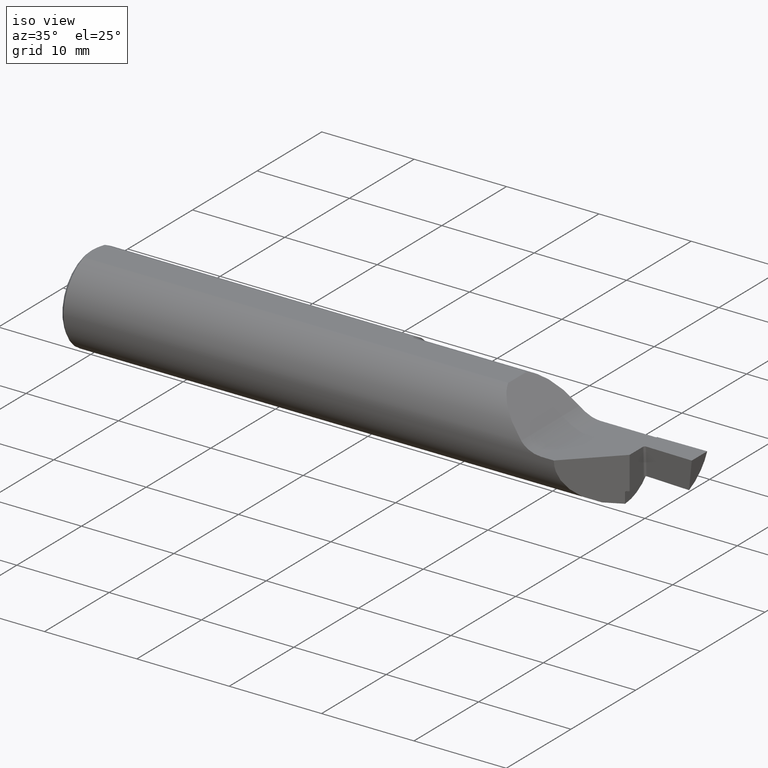
[diagram: clean part render]
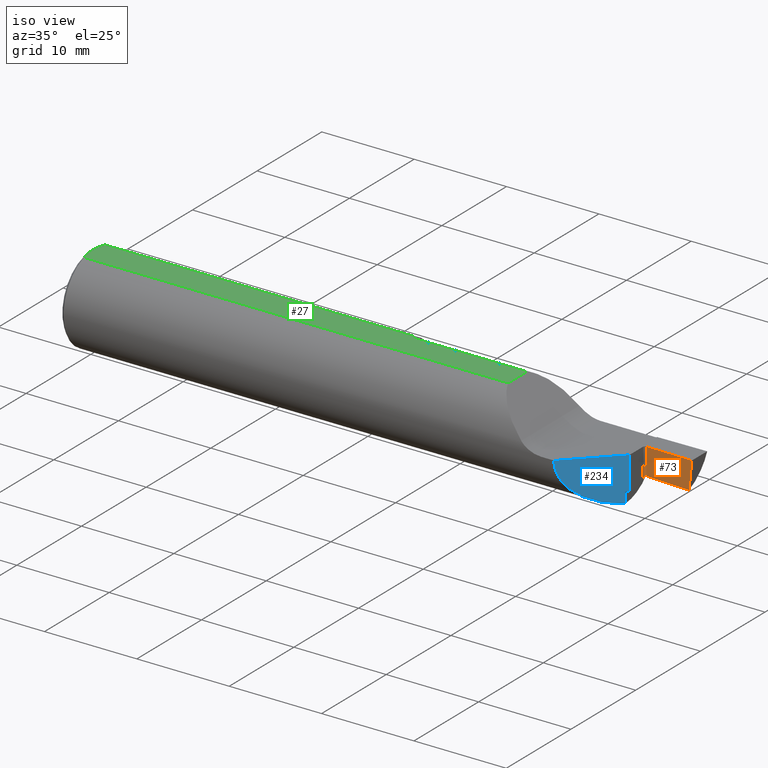
[diagram: same view with three faces highlighted in distinct colors, each labeled with its STEP entity id]
A machine part, iso view with three faces highlighted in distinct colors.
Their STEP definitions:

[orange] entity #73 — the highlighted planar face has unit normal (0.0174, 0.9992, 0.0349).
#18 = ORIENTED_EDGE ( 'NONE', *, *, #813, .T. ) ;
#41 = CARTESIAN_POINT ( 'NONE',  ( 2.303210421468169233, 0.09583674312377118976, -0.1160315976012115252 ) ) ;
#52 = EDGE_CURVE ( 'NONE', #150, #299, #556, .T. ) ;
#73 = ADVANCED_FACE ( 'NONE', ( #350 ), #749, .F. ) ;
#76 = DIRECTION ( 'NONE',  ( 0.9998476951563912696, -0.01745240643727495600, 0.000000000000000000 ) ) ;
#79 = EDGE_LOOP ( 'NONE', ( #320, #18, #526, #117 ) ) ;
#117 = ORIENTED_EDGE ( 'NONE', *, *, #304, .F. ) ;
#130 = CARTESIAN_POINT ( 'NONE',  ( 2.485325741300552949, 0.09277947384183525548, -0.1195122464220158692 ) ) ;
#149 = DIRECTION ( 'NONE',  ( 0.000000000000000000, -0.03490480639812536257, 0.9993906415863165194 ) ) ;
#150 = VERTEX_POINT ( 'NONE', #41 ) ;
#210 = VECTOR ( 'NONE', #76, 39.37007874015748854 ) ;
#215 = CARTESIAN_POINT ( 'NONE',  ( 2.303379501196029633, 0.1055233142454422290, -0.3934609555193291364 ) ) ;
#235 = LINE ( 'NONE', #292, #566 ) ;
#247 = CARTESIAN_POINT ( 'NONE',  ( 2.303139705841341200, 0.09178544757610611338, -6.189343110645596508E-17 ) ) ;
#288 = DIRECTION ( 'NONE',  ( 0.01744177490282172033, 0.9992386149554827179, 0.03489949670250104552 ) ) ;
#292 = CARTESIAN_POINT ( 'NONE',  ( 2.449477741060713587, 0.1036021726831220791, -0.4114707791253824354 ) ) ;
#296 = VERTEX_POINT ( 'NONE', #673 ) ;
#299 = VERTEX_POINT ( 'NONE', #130 ) ;
#304 = EDGE_CURVE ( 'NONE', #150, #521, #342, .T. ) ;
#320 = ORIENTED_EDGE ( 'NONE', *, *, #52, .T. ) ;
#342 = LINE ( 'NONE', #602, #458 ) ;
#350 = FACE_OUTER_BOUND ( 'NONE', #79, .T. ) ;
#420 = AXIS2_PLACEMENT_3D ( 'NONE', #215, #288, #149 ) ;
#458 = VECTOR ( 'NONE', #669, 39.37007874015748143 ) ;
#493 = LINE ( 'NONE', #624, #210 ) ;
#521 = VERTEX_POINT ( 'NONE', #247 ) ;
#526 = ORIENTED_EDGE ( 'NONE', *, *, #707, .F. ) ;
#556 =( BOUNDED_CURVE ( )  B_SPLINE_CURVE ( 3, ( #615, #824, #741, #599 ),
 .UNSPECIFIED., .F., .T. ) 
 B_SPLINE_CURVE_WITH_KNOTS ( ( 4, 4 ),
 ( 1.076180560793908114, 1.116988379710747381 ),
 .UNSPECIFIED. ) 
 CURVE ( )  GEOMETRIC_REPRESENTATION_ITEM ( )  RATIONAL_B_SPLINE_CURVE ( ( 1.000000000000000000, 0.9998612316407025080, 0.9998612316407025080, 1.000000000000000000 ) ) 
 REPRESENTATION_ITEM ( '' )  );
#566 = VECTOR ( 'NONE', #611, 39.37007874015748143 ) ;
#599 = CARTESIAN_POINT ( 'NONE',  ( 2.485325741300552949, 0.09277947384183525548, -0.1195122464220158692 ) ) ;
#602 = CARTESIAN_POINT ( 'NONE',  ( 2.303379501196029633, 0.1055233142454422290, -0.3934609555193291364 ) ) ;
#611 = DIRECTION ( 'NONE',  ( 0.1217869383157133556, -0.03676811390802552093, 0.9918750160455352960 ) ) ;
#615 = CARTESIAN_POINT ( 'NONE',  ( 2.303210421468169233, 0.09583674312377118976, -0.1160315976012115252 ) ) ;
#624 = CARTESIAN_POINT ( 'NONE',  ( 2.006708150410357216, 0.09695967962292385833, 0.000000000000000000 ) ) ;
#669 = DIRECTION ( 'NONE',  ( -0.0006090802009083879243, -0.03489418134011375294, 0.9993908270190957621 ) ) ;
#673 = CARTESIAN_POINT ( 'NONE',  ( 2.500000000000000000, 0.08834923835978035489, -6.829619984160658046E-17 ) ) ;
#707 = EDGE_CURVE ( 'NONE', #521, #296, #493, .T. ) ;
#741 = CARTESIAN_POINT ( 'NONE',  ( 2.423989015258725566, 0.09381107259213372629, -0.1183945207770857044 ) ) ;
#749 = PLANE ( 'NONE',  #420 ) ;
#813 = EDGE_CURVE ( 'NONE', #299, #296, #235, .T. ) ;
#824 = CARTESIAN_POINT ( 'NONE',  ( 2.363275483530745902, 0.09483030378982010289, -0.1172341434798306603 ) ) ;

[blue] entity #234 — the highlighted planar face has unit normal (-0.7071, 0.7071, 0).
#1 = CARTESIAN_POINT ( 'NONE',  ( 2.283393038587651080, -0.008956961412348769108, 0.03500000000000000333 ) ) ;
#19 = EDGE_CURVE ( 'NONE', #495, #564, #426, .T. ) ;
#55 = B_SPLINE_CURVE_WITH_KNOTS ( 'NONE', 3,
 ( #276, #198, #72, #394, #338, #520 ),
 .UNSPECIFIED., .F., .F.,
 ( 4, 2, 4 ),
 ( 0.000000000000000000, 0.0001177800118684054018, 0.0002355600237368108037 ),
 .UNSPECIFIED. ) ;
#58 = DIRECTION ( 'NONE',  ( -0.7071067811865467956, 0.7071067811865483499, 0.000000000000000000 ) ) ;
#68 = LINE ( 'NONE', #808, #522 ) ;
#72 = CARTESIAN_POINT ( 'NONE',  ( 2.284178583653680761, -0.008171416346319545013, -0.1413457714316157521 ) ) ;
#81 = CARTESIAN_POINT ( 'NONE',  ( 2.283393038587651080, -0.008956961412348769108, -0.1871357671378127974 ) ) ;
#96 = ORIENTED_EDGE ( 'NONE', *, *, #597, .F. ) ;
#116 = CARTESIAN_POINT ( 'NONE',  ( 2.294999999999999929, 0.002650000000000004349, -0.1399387451215776956 ) ) ;
#119 = CARTESIAN_POINT ( 'NONE',  ( 2.104999999999999538, -0.1873499999999999888, -6.829619984160658046E-17 ) ) ;
#185 = CARTESIAN_POINT ( 'NONE',  ( 2.290536641306539334, -0.001813358693460846195, -0.1397814340830136892 ) ) ;
#189 =( BOUNDED_CURVE ( )  B_SPLINE_CURVE ( 3, ( #500, #185, #240, #116 ),
 .UNSPECIFIED., .F., .F. ) 
 B_SPLINE_CURVE_WITH_KNOTS ( ( 4, 4 ),
 ( 1.506729512058387010, 1.544336988234593422 ),
 .UNSPECIFIED. ) 
 CURVE ( )  GEOMETRIC_REPRESENTATION_ITEM ( )  RATIONAL_B_SPLINE_CURVE ( ( 1.000000000000000000, 0.9998821432840196977, 0.9998821432840196977, 1.000000000000000000 ) ) 
 REPRESENTATION_ITEM ( '' )  );
#193 = CARTESIAN_POINT ( 'NONE',  ( 2.294999999999999929, 0.002650000000000004349, -0.1873499999999999888 ) ) ;
#198 = CARTESIAN_POINT ( 'NONE',  ( 2.283393038587651080, -0.008956961412348769108, -0.1427136421016734213 ) ) ;
#214 = DIRECTION ( 'NONE',  ( 0.7071067811865483499, 0.7071067811865467956, 0.000000000000000000 ) ) ;
#229 = ORIENTED_EDGE ( 'NONE', *, *, #19, .T. ) ;
#230 = CARTESIAN_POINT ( 'NONE',  ( 2.104999999999999538, -0.1873499999999999888, -6.829619984160658046E-17 ) ) ;
#232 = EDGE_CURVE ( 'NONE', #423, #382, #55, .T. ) ;
#234 = ADVANCED_FACE ( 'NONE', ( #593 ), #263, .F. ) ;
#240 = CARTESIAN_POINT ( 'NONE',  ( 2.292767567870056311, 0.0004175678700561035340, -0.1398807027853394280 ) ) ;
#263 = PLANE ( 'NONE',  #579 ) ;
#270 = EDGE_LOOP ( 'NONE', ( #379, #96, #443, #623, #229, #708 ) ) ;
#276 = CARTESIAN_POINT ( 'NONE',  ( 2.283393038587651080, -0.008956961412348769108, -0.1442845781537732130 ) ) ;
#293 = CARTESIAN_POINT ( 'NONE',  ( 2.288308009098484419, -0.004041990901515791351, -0.1396409741130502091 ) ) ;
#335 = DIRECTION ( 'NONE',  ( -0.7071067811865483499, -0.7071067811865467956, 0.000000000000000000 ) ) ;
#336 = CARTESIAN_POINT ( 'NONE',  ( 2.294999999999999929, 0.002650000000000004349, -0.1873499999999999888 ) ) ;
#338 = CARTESIAN_POINT ( 'NONE',  ( 2.287207933615704292, -0.005142066384295617722, -0.1395716416459386600 ) ) ;
#341 = CARTESIAN_POINT ( 'NONE',  ( 2.104999999999999538, -0.1873500000000000165, -0.1056296794908331560 ) ) ;
#344 = EDGE_CURVE ( 'NONE', #510, #564, #68, .T. ) ;
#371 = CARTESIAN_POINT ( 'NONE',  ( 2.294999999999999929, 0.002650000000000004349, -0.1399387451215776956 ) ) ;
#376 = CARTESIAN_POINT ( 'NONE',  ( 2.283393038587651080, -0.008956961412348769108, -0.1442845781537732130 ) ) ;
#379 = ORIENTED_EDGE ( 'NONE', *, *, #761, .F. ) ;
#382 = VERTEX_POINT ( 'NONE', #293 ) ;
#394 = CARTESIAN_POINT ( 'NONE',  ( 2.286097446348254181, -0.006252553651746071278, -0.1398465439248123832 ) ) ;
#402 = LINE ( 'NONE', #1, #497 ) ;
#423 = VERTEX_POINT ( 'NONE', #376 ) ;
#426 = LINE ( 'NONE', #336, #696 ) ;
#436 = EDGE_CURVE ( 'NONE', #382, #495, #189, .T. ) ;
#443 = ORIENTED_EDGE ( 'NONE', *, *, #232, .T. ) ;
#471 = DIRECTION ( 'NONE',  ( -0.000000000000000000, -0.000000000000000000, 1.000000000000000000 ) ) ;
#495 = VERTEX_POINT ( 'NONE', #371 ) ;
#497 = VECTOR ( 'NONE', #662, 39.37007874015748143 ) ;
#500 = CARTESIAN_POINT ( 'NONE',  ( 2.288308009098484419, -0.004041990901515791351, -0.1396409741130502091 ) ) ;
#510 = VERTEX_POINT ( 'NONE', #119 ) ;
#520 = CARTESIAN_POINT ( 'NONE',  ( 2.288308009098484419, -0.004041990901515791351, -0.1396409741130502091 ) ) ;
#522 = VECTOR ( 'NONE', #214, 39.37007874015748143 ) ;
#523 = CARTESIAN_POINT ( 'NONE',  ( 2.283393038587651080, -0.008956961412348769108, -0.1871357671378127974 ) ) ;
#534 = CARTESIAN_POINT ( 'NONE',  ( 2.294999999999999929, 0.002650000000000004349, -6.829619984160658046E-17 ) ) ;
#564 = VERTEX_POINT ( 'NONE', #534 ) ;
#579 = AXIS2_PLACEMENT_3D ( 'NONE', #193, #58, #335 ) ;
#593 = FACE_OUTER_BOUND ( 'NONE', #270, .T. ) ;
#597 = EDGE_CURVE ( 'NONE', #423, #641, #402, .T. ) ;
#623 = ORIENTED_EDGE ( 'NONE', *, *, #436, .T. ) ;
#641 = VERTEX_POINT ( 'NONE', #523 ) ;
#662 = DIRECTION ( 'NONE',  ( 0.000000000000000000, 0.000000000000000000, -1.000000000000000000 ) ) ;
#696 = VECTOR ( 'NONE', #471, 39.37007874015748143 ) ;
#708 = ORIENTED_EDGE ( 'NONE', *, *, #344, .F. ) ;
#728 =( BOUNDED_CURVE ( )  B_SPLINE_CURVE ( 3, ( #81, #826, #341, #230 ),
 .UNSPECIFIED., .F., .T. ) 
 B_SPLINE_CURVE_WITH_KNOTS ( ( 4, 4 ),
 ( 4.760215919483345104, 6.283185307179586232 ),
 .UNSPECIFIED. ) 
 CURVE ( )  GEOMETRIC_REPRESENTATION_ITEM ( )  RATIONAL_B_SPLINE_CURVE ( ( 1.000000000000000000, 0.8158749165344600929, 0.8158749165344600929, 1.000000000000000000 ) ) 
 REPRESENTATION_ITEM ( '' )  );
#761 = EDGE_CURVE ( 'NONE', #641, #510, #728, .T. ) ;
#808 = CARTESIAN_POINT ( 'NONE',  ( 2.002499999999999947, -0.2898499999999996635, 0.000000000000000000 ) ) ;
#826 = CARTESIAN_POINT ( 'NONE',  ( 2.177884145585044173, -0.1144658544149553397, -0.1820857486526344937 ) ) ;

[green] entity #27 — the highlighted planar face has unit normal (0, 0, -1).
#13 = CARTESIAN_POINT ( 'NONE',  ( 0.004994273251992769995, -0.02144446570098899885, 0.1763499999999999790 ) ) ;
#14 = DIRECTION ( 'NONE',  ( 1.000000000000000000, 0.000000000000000000, 0.000000000000000000 ) ) ;
#27 = ADVANCED_FACE ( 'NONE', ( #145 ), #814, .F. ) ;
#33 = CARTESIAN_POINT ( 'NONE',  ( 1.339391378728019832, 0.05054325299224062679, 0.1763499999999999512 ) ) ;
#42 = VERTEX_POINT ( 'NONE', #484 ) ;
#50 = ORIENTED_EDGE ( 'NONE', *, *, #401, .F. ) ;
#60 = EDGE_CURVE ( 'NONE', #75, #687, #674, .T. ) ;
#75 = VERTEX_POINT ( 'NONE', #274 ) ;
#78 = DIRECTION ( 'NONE',  ( -1.000000000000000000, 0.000000000000000000, -0.000000000000000000 ) ) ;
#88 = VERTEX_POINT ( 'NONE', #536 ) ;
#93 = CARTESIAN_POINT ( 'NONE',  ( 1.335371528663762408, 0.05848268389675807810, 0.1763499999999999790 ) ) ;
#103 = CARTESIAN_POINT ( 'NONE',  ( 0.000000000000000000, -0.06325108694718213631, 0.1763499999999999790 ) ) ;
#135 = AXIS2_PLACEMENT_3D ( 'NONE', #409, #805, #78 ) ;
#145 = FACE_OUTER_BOUND ( 'NONE', #841, .T. ) ;
#162 = ORIENTED_EDGE ( 'NONE', *, *, #356, .T. ) ;
#164 = CARTESIAN_POINT ( 'NONE',  ( 1.336737058446424209, 0.05385394031618935540, 0.1763500000000000068 ) ) ;
#169 = DIRECTION ( 'NONE',  ( 1.000000000000000000, 0.000000000000000000, 0.000000000000000000 ) ) ;
#173 = LINE ( 'NONE', #103, #483 ) ;
#177 = CARTESIAN_POINT ( 'NONE',  ( 1.337958805214830571, 0.05174923270990745144, 0.1763499999999999235 ) ) ;
#179 = CARTESIAN_POINT ( 'NONE',  ( 1.335009689054889037, 0.06325108694718309388, 0.1763499999999996737 ) ) ;
#217 = CARTESIAN_POINT ( 'NONE',  ( 1.823649999999999771, 0.05054325299224043250, 0.1763499999999999790 ) ) ;
#227 = CARTESIAN_POINT ( 'NONE',  ( 1.335009689054889037, 0.06325108694718309388, 0.1763499999999996737 ) ) ;
#242 = ORIENTED_EDGE ( 'NONE', *, *, #60, .F. ) ;
#256 = EDGE_CURVE ( 'NONE', #88, #687, #586, .T. ) ;
#274 = CARTESIAN_POINT ( 'NONE',  ( 1.340000000000000080, 0.05054325299224017576, 0.1763500000000000068 ) ) ;
#281 = CARTESIAN_POINT ( 'NONE',  ( 0.01157250466904289656, -0.05309883057899358189, 0.1763500000000000068 ) ) ;
#284 = CARTESIAN_POINT ( 'NONE',  ( 0.003999999999999476197, 2.550090563692220756E-17, 0.1763499999999999790 ) ) ;
#333 = CARTESIAN_POINT ( 'NONE',  ( 0.01499999999999943046, 0.06325108694718213631, 0.1763499999999999790 ) ) ;
#353 = CARTESIAN_POINT ( 'NONE',  ( 0.01499999999999943046, -0.06325108694718213631, 0.1763499999999999790 ) ) ;
#356 = EDGE_CURVE ( 'NONE', #42, #845, #661, .T. ) ;
#398 = CARTESIAN_POINT ( 'NONE',  ( 0.003999999999999440635, 0.01078773779713886743, 0.1763500000000000068 ) ) ;
#401 = EDGE_CURVE ( 'NONE', #791, #505, #787, .T. ) ;
#409 = CARTESIAN_POINT ( 'NONE',  ( 0.000000000000000000, -0.2873500000000001053, 0.1763499999999999790 ) ) ;
#412 = EDGE_CURVE ( 'NONE', #88, #845, #173, .T. ) ;
#432 = CARTESIAN_POINT ( 'NONE',  ( 1.337621628564846787, 0.05225604298120335722, 0.1763500000000000068 ) ) ;
#444 = VECTOR ( 'NONE', #169, 39.37007874015748143 ) ;
#465 = CARTESIAN_POINT ( 'NONE',  ( 0.008794551420594657470, 0.04267918597792697000, 0.1763499999999999790 ) ) ;
#466 = CARTESIAN_POINT ( 'NONE',  ( 1.823649999999999771, 0.06325108694718213631, 0.1763499999999999790 ) ) ;
#478 = CARTESIAN_POINT ( 'NONE',  ( 0.01499999999999943046, 0.06325108694718213631, 0.1763499999999999790 ) ) ;
#480 = CARTESIAN_POINT ( 'NONE',  ( 0.9958286716179119979, 0.05054325299224032148, 0.1763499999999999790 ) ) ;
#483 = VECTOR ( 'NONE', #783, 39.37007874015748143 ) ;
#484 = CARTESIAN_POINT ( 'NONE',  ( 0.003999999999999476197, 2.550090563692220756E-17, 0.1763499999999999790 ) ) ;
#488 = ORIENTED_EDGE ( 'NONE', *, *, #855, .F. ) ;
#505 = VERTEX_POINT ( 'NONE', #179 ) ;
#514 = ORIENTED_EDGE ( 'NONE', *, *, #638, .T. ) ;
#525 = DIRECTION ( 'NONE',  ( -0.000000000000000000, 1.000000000000000000, 0.000000000000000000 ) ) ;
#536 = CARTESIAN_POINT ( 'NONE',  ( 1.823649999999999771, -0.06325108694718213631, 0.1763499999999999790 ) ) ;
#583 = CARTESIAN_POINT ( 'NONE',  ( 0.005015444644058507026, 0.02160243875479323644, 0.1763499999999999790 ) ) ;
#586 = LINE ( 'NONE', #466, #752 ) ;
#590 = VECTOR ( 'NONE', #14, 39.37007874015748143 ) ;
#619 = CARTESIAN_POINT ( 'NONE',  ( 0.01499999999999943046, -0.06325108694718213631, 0.1763499999999999790 ) ) ;
#632 = CARTESIAN_POINT ( 'NONE',  ( 1.340000000000000080, 0.05054325299224017576, 0.1763500000000000068 ) ) ;
#638 = EDGE_CURVE ( 'NONE', #791, #42, #645, .T. ) ;
#645 = B_SPLINE_CURVE_WITH_KNOTS ( 'NONE', 3,
 ( #333, #854, #465, #583, #398, #733 ),
 .UNSPECIFIED., .F., .F.,
 ( 4, 2, 4 ),
 ( 0.004067309716740378708, 0.004877052610379914790, 0.005686795504019450005 ),
 .UNSPECIFIED. ) ;
#647 = CARTESIAN_POINT ( 'NONE',  ( 1.338826947156392722, 0.05089100678216058188, 0.1763500000000000068 ) ) ;
#660 = ORIENTED_EDGE ( 'NONE', *, *, #412, .F. ) ;
#661 = B_SPLINE_CURVE_WITH_KNOTS ( 'NONE', 3,
 ( #284, #759, #13, #753, #281, #619 ),
 .UNSPECIFIED., .F., .F.,
 ( 4, 2, 4 ),
 ( 0.005686795504019450005, 0.006495656790038641104, 0.007304518076057833070 ),
 .UNSPECIFIED. ) ;
#674 = LINE ( 'NONE', #480, #590 ) ;
#687 = VERTEX_POINT ( 'NONE', #217 ) ;
#705 = CARTESIAN_POINT ( 'NONE',  ( 0.000000000000000000, 0.06325108694718213631, 0.1763499999999999790 ) ) ;
#733 = CARTESIAN_POINT ( 'NONE',  ( 0.003999999999999476197, 2.550090563692220756E-17, 0.1763499999999999790 ) ) ;
#752 = VECTOR ( 'NONE', #525, 39.37007874015748143 ) ;
#753 = CARTESIAN_POINT ( 'NONE',  ( 0.008771136374093822449, -0.04258802525788809440, 0.1763499999999999790 ) ) ;
#759 = CARTESIAN_POINT ( 'NONE',  ( 0.003999999999999438900, -0.01077599264701411402, 0.1763499999999999512 ) ) ;
#763 = CARTESIAN_POINT ( 'NONE',  ( 1.335069243236268077, 0.06084819611239657144, 0.1763499999999999790 ) ) ;
#783 = DIRECTION ( 'NONE',  ( -1.000000000000000000, -0.000000000000000000, -0.000000000000000000 ) ) ;
#787 = LINE ( 'NONE', #705, #444 ) ;
#791 = VERTEX_POINT ( 'NONE', #478 ) ;
#800 = ORIENTED_EDGE ( 'NONE', *, *, #256, .T. ) ;
#804 = B_SPLINE_CURVE_WITH_KNOTS ( 'NONE', 3,
 ( #227, #763, #93, #846, #164, #432, #177, #647, #33, #632 ),
 .UNSPECIFIED., .F., .F.,
 ( 4, 2, 2, 2, 4 ),
 ( 0.001068967629214199935, 0.001252800944429019675, 0.001344717602036429437, 0.001390675930840129656, 0.001436634259643829875 ),
 .UNSPECIFIED. ) ;
#805 = DIRECTION ( 'NONE',  ( 0.000000000000000000, 0.000000000000000000, -1.000000000000000000 ) ) ;
#814 = PLANE ( 'NONE',  #135 ) ;
#841 = EDGE_LOOP ( 'NONE', ( #242, #488, #50, #514, #162, #660, #800 ) ) ;
#845 = VERTEX_POINT ( 'NONE', #353 ) ;
#846 = CARTESIAN_POINT ( 'NONE',  ( 1.336331159115146772, 0.05501236657328722329, 0.1763500000000000068 ) ) ;
#854 = CARTESIAN_POINT ( 'NONE',  ( 0.01155164730757253858, 0.05303705098182932148, 0.1763499999999999512 ) ) ;
#855 = EDGE_CURVE ( 'NONE', #505, #75, #804, .T. ) ;